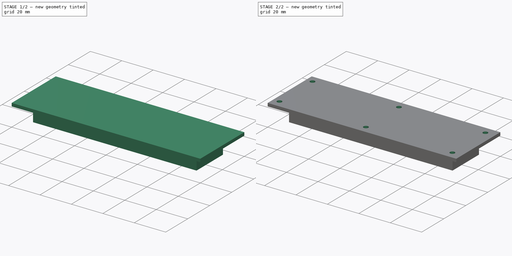
[diagram: build sequence overview — one tinted view per stage of 2, left to right]
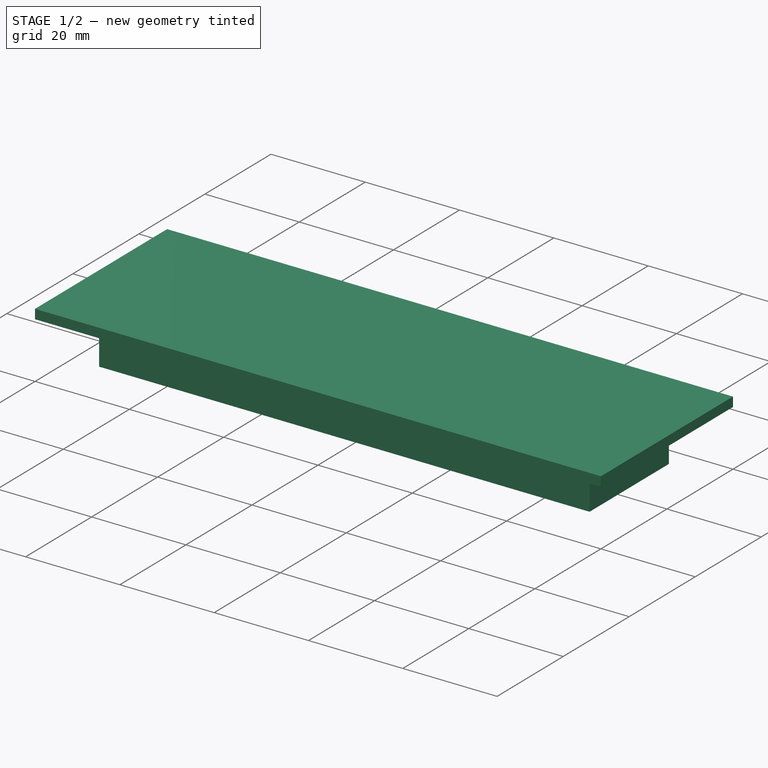
[diagram: stage 1 of 2 — iso view after this stage's code; geometry added in this stage tinted green]
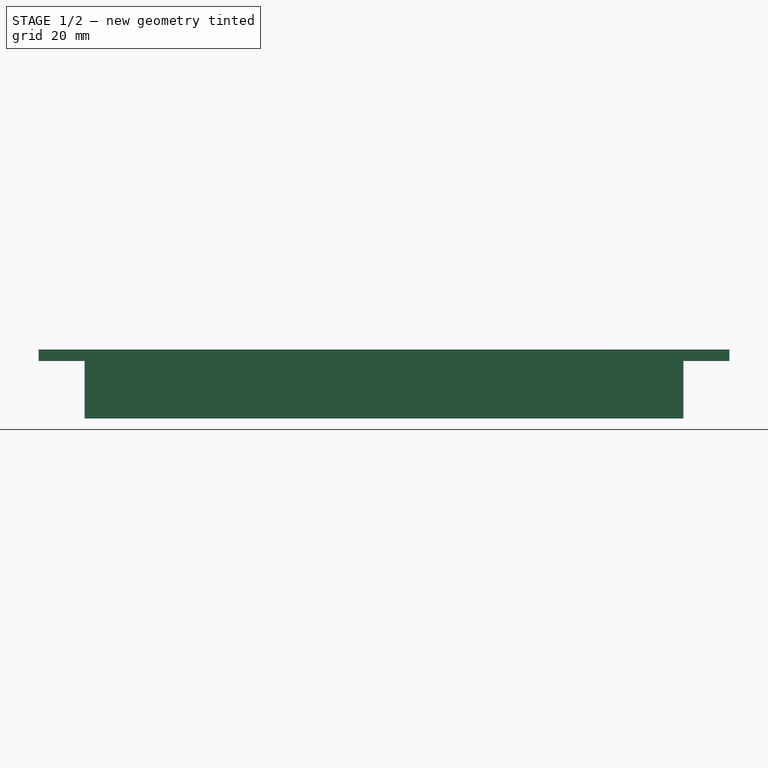
[diagram: stage 1 of 2 — front view after this stage's code; geometry added in this stage tinted green]
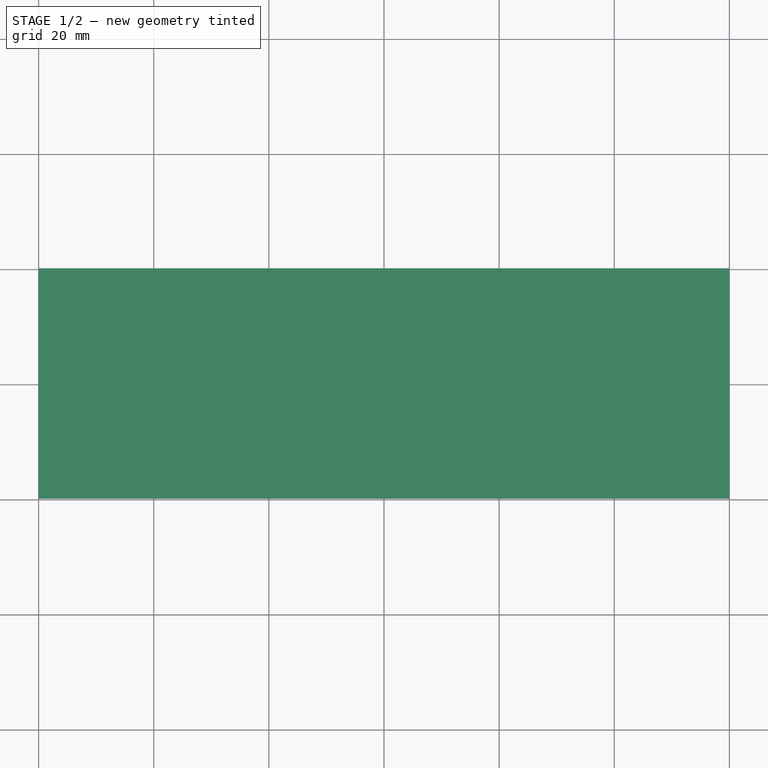
[diagram: stage 1 of 2 — top view after this stage's code; geometry added in this stage tinted green]
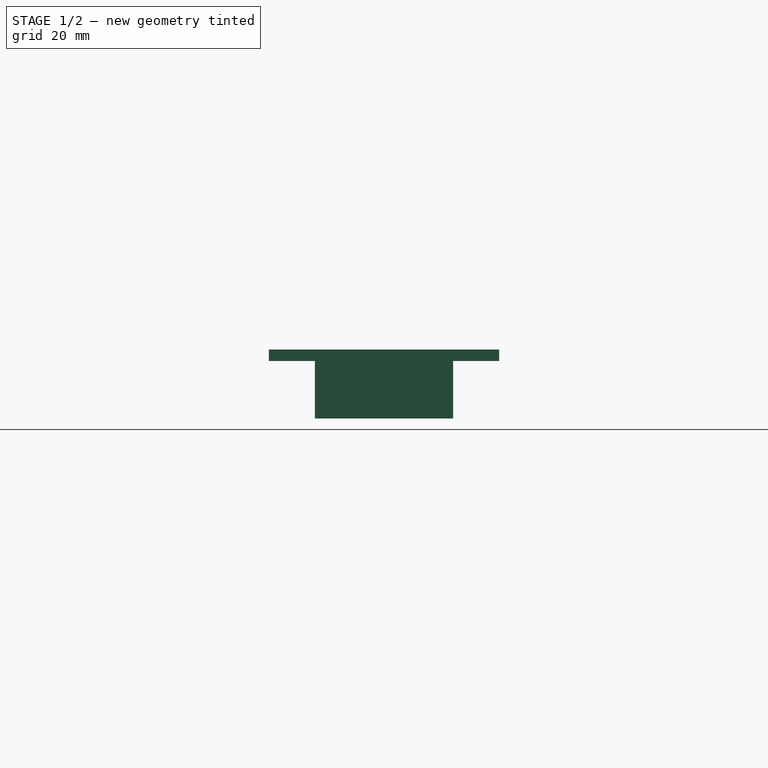
[diagram: stage 1 of 2 — right view after this stage's code; geometry added in this stage tinted green]
FCSTD DOCUMENT  (FreeCAD 0.16R6706 (Git))
Label: iROB-EA_ModuloPrincipal_Lateral
License: All rights reserved
LicenseURL: http://en.wikipedia.org/wiki/All_rights_reserved
objects: Sketcher::SketchObject×4, PartDesign::Pad×2, PartDesign::Pocket×2
note: 12 computed .brp shape members not serialized (recipe doc carries the construction recipe); baked Part::Feature solids carry a one-line shape summary decoded from their .brp

FEATURE [Sketcher::SketchObject] Sketch  label="Base"
  sketch-geometry (4):
    g0: LineSegment StartX=0 StartY=40 StartZ=0 EndX=120 EndY=40 EndZ=0
    g1: LineSegment StartX=120 StartY=40 StartZ=0 EndX=120 EndY=0 EndZ=0
    g2: LineSegment StartX=120 StartY=0 StartZ=0 EndX=0 EndY=0 EndZ=0
    g3: LineSegment StartX=0 StartY=0 StartZ=0 EndX=0 EndY=40 EndZ=0
  constraints (11):
    c: Coincident(g0,g1)
    c: Coincident(g1,g2)
    c: Coincident(g2,g3)
    c: Coincident(g3,g0)
    c: Horizontal(g0)
    c: Horizontal(g2)
    c: Vertical(g1)
    c: Vertical(g3)
    c: DistanceX(g0,g0) = 120
    c: DistanceY(g3,g3) = 40
    c: Coincident(g2,g-1)
FEATURE [PartDesign::Pad] Pad
  Length = 2
  Length2 = 100
  Sketch = -> Sketch
  Type = 0
FEATURE [Sketcher::SketchObject] Sketch009  label="Recuadro_Ventana"
  Placement = pos=(0,0,0) rot=(1,0,0;3.14159rad)
  Support = -> Pad [Face5]
  sketch-geometry (8):
    g0: LineSegment StartX=10 StartY=-10 StartZ=0 EndX=110 EndY=-10 EndZ=0
    g1: LineSegment StartX=110 StartY=-10 StartZ=0 EndX=110 EndY=-30 EndZ=0
    g2: LineSegment StartX=110 StartY=-30 StartZ=0 EndX=10 EndY=-30 EndZ=0
    g3: LineSegment StartX=10 StartY=-30 StartZ=0 EndX=10 EndY=-10 EndZ=0
    g4: LineSegment StartX=8 StartY=-8 StartZ=0 EndX=112 EndY=-8 EndZ=0
    g5: LineSegment StartX=112 StartY=-8 StartZ=0 EndX=112 EndY=-32 EndZ=0
    g6: LineSegment StartX=112 StartY=-32 StartZ=0 EndX=8 EndY=-32 EndZ=0
    g7: LineSegment StartX=8 StartY=-32 StartZ=0 EndX=8 EndY=-8 EndZ=0
  constraints (24):
    c: Coincident(g0,g1)
    c: Coincident(g1,g2)
    c: Coincident(g2,g3)
    c: Coincident(g3,g0)
    c: Horizontal(g0)
    c: Horizontal(g2)
    c: Vertical(g1)
    c: Vertical(g3)
    c: DistanceX(g0,g0) = 100
    c: DistanceY(g3,g3) = 20
    c: Coincident(g4,g5)
    c: Coincident(g5,g6)
    c: Coincident(g6,g7)
    c: Coincident(g7,g4)
    c: Horizontal(g4)
    c: Horizontal(g6)
    c: Vertical(g5)
    c: Vertical(g7)
    c: DistanceX(g4,g4) = 104
    c: DistanceY(g7,g7) = 24
    c: DistanceY(g6,g2) = 2
    c: DistanceX(g2,g6) = -2
    c: DistanceY(g0,g-1) = 10
    c: DistanceX(g-1,g0) = 10
FEATURE [PartDesign::Pad] Pad001
  Length = 10
  Length2 = 100
  Sketch = -> Sketch009
  Type = 0
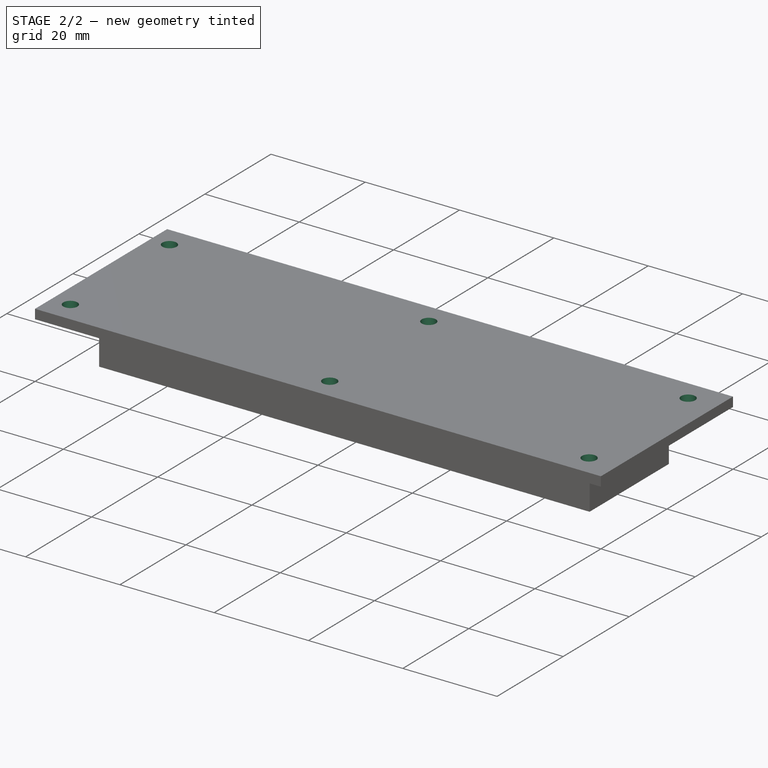
[diagram: stage 2 of 2 — iso view after this stage's code; geometry added in this stage tinted green]
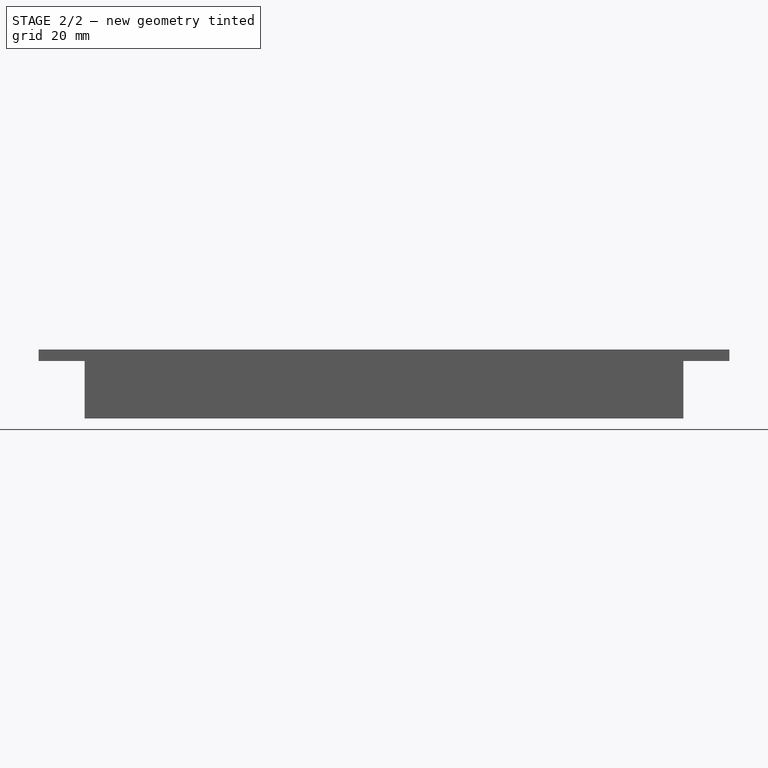
[diagram: stage 2 of 2 — front view after this stage's code; geometry added in this stage tinted green]
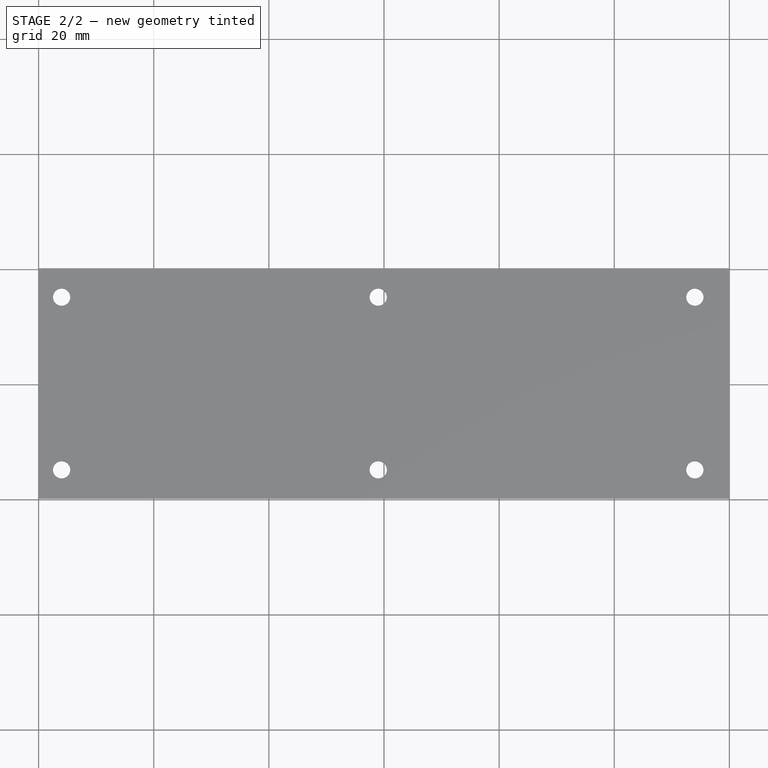
[diagram: stage 2 of 2 — top view after this stage's code; geometry added in this stage tinted green]
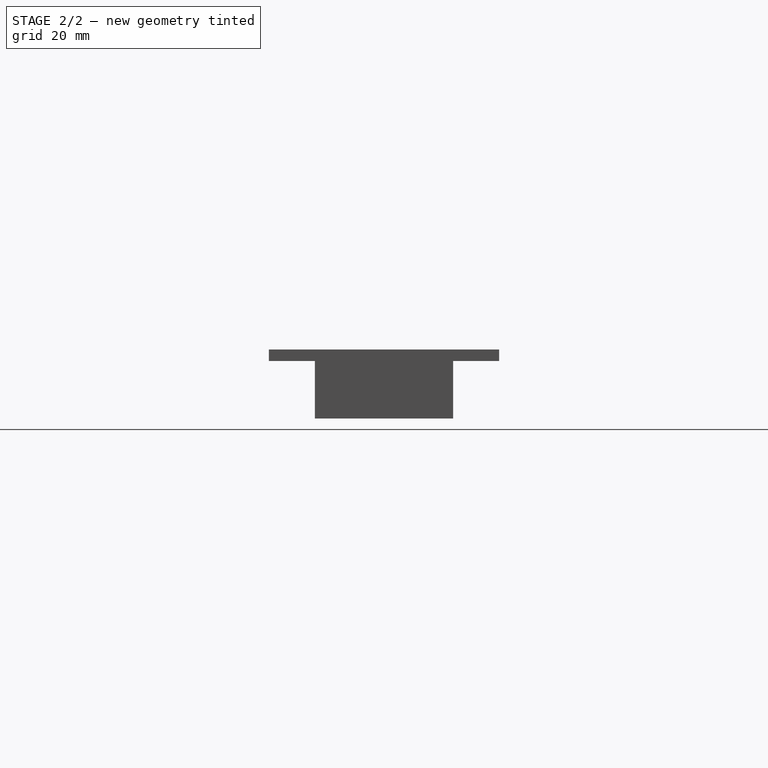
[diagram: stage 2 of 2 — right view after this stage's code; geometry added in this stage tinted green]
FEATURE [Sketcher::SketchObject] Sketch010  label="Ventana_Se_Ha_quitado"
  Placement = pos=(0,0,2) rot=(0,0,1;0rad)
  Support = -> Pad001 [Face5]
  sketch-geometry (2):
    g0: LineSegment StartX=110 StartY=10 StartZ=0 EndX=110 EndY=10 EndZ=0
    g1: LineSegment StartX=10 StartY=10 StartZ=0 EndX=10 EndY=10 EndZ=0
  constraints (2):
    c: Vertical(g0)
    c: Vertical(g1)
FEATURE [PartDesign::Pocket] Pocket
  Length = 4
  Sketch = -> Sketch010
  Type = 0
FEATURE [Sketcher::SketchObject] Sketch011  label="Taladros"
  Placement = pos=(0,0,0) rot=(1,0,0;3.14159rad)
  Support = -> Pocket [Face4]
  sketch-geometry (6):
    g0: Circle CenterX=4 CenterY=-5 CenterZ=0 NormalX=0 NormalY=0 NormalZ=1 Radius=1.5
    g1: Circle CenterX=59 CenterY=-5 CenterZ=0 NormalX=0 NormalY=0 NormalZ=1 Radius=1.5
    g2: Circle CenterX=114 CenterY=-5 CenterZ=0 NormalX=0 NormalY=0 NormalZ=1 Radius=1.5
    g3: Circle CenterX=4 CenterY=-35 CenterZ=0 NormalX=0 NormalY=0 NormalZ=1 Radius=1.5
    g4: Circle CenterX=59 CenterY=-35 CenterZ=0 NormalX=0 NormalY=0 NormalZ=1 Radius=1.5
    g5: Circle CenterX=114 CenterY=-35 CenterZ=0 NormalX=0 NormalY=0 NormalZ=1 Radius=1.5
  constraints (18):
    c: Radius(g0) = 1.5
    c: Radius(g1) = 1.5
    c: DistanceX(g0,g1) = 55
    c: DistanceY(g1,g0) = 0
    c: Radius(g2) = 1.5
    c: DistanceY(g2,g1) = 0
    c: DistanceX(g2,g1) = -55
    c: DistanceX(g-1,g0) = 4
    c: DistanceY(g-1,g0) = -5
    c: Radius(g3) = 1.5
    c: Radius(g4) = 1.5
    c: Radius(g5) = 1.5
    c: DistanceY(g3,g4) = 0
    c: DistanceY(g5,g4) = 0
    c: DistanceX(g3,g4) = 55
    c: DistanceX(g4,g5) = 55
    c: DistanceX(g3,g0) = 0
    c: DistanceY(g3,g0) = 30
FEATURE [PartDesign::Pocket] Pocket001
  Length = 4
  Sketch = -> Sketch011
  Type = 0
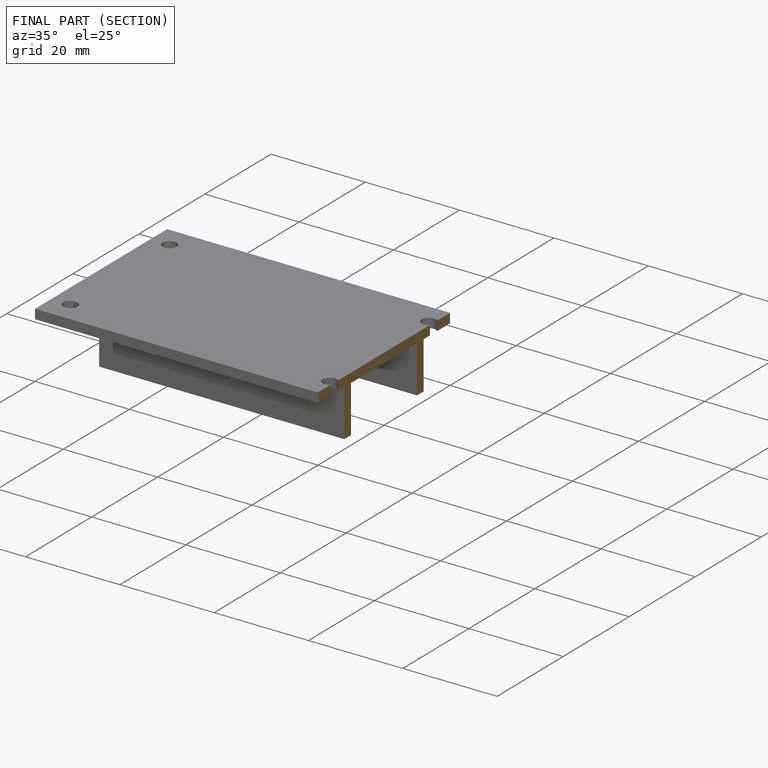
[diagram: finished part — half-section view (interior)]
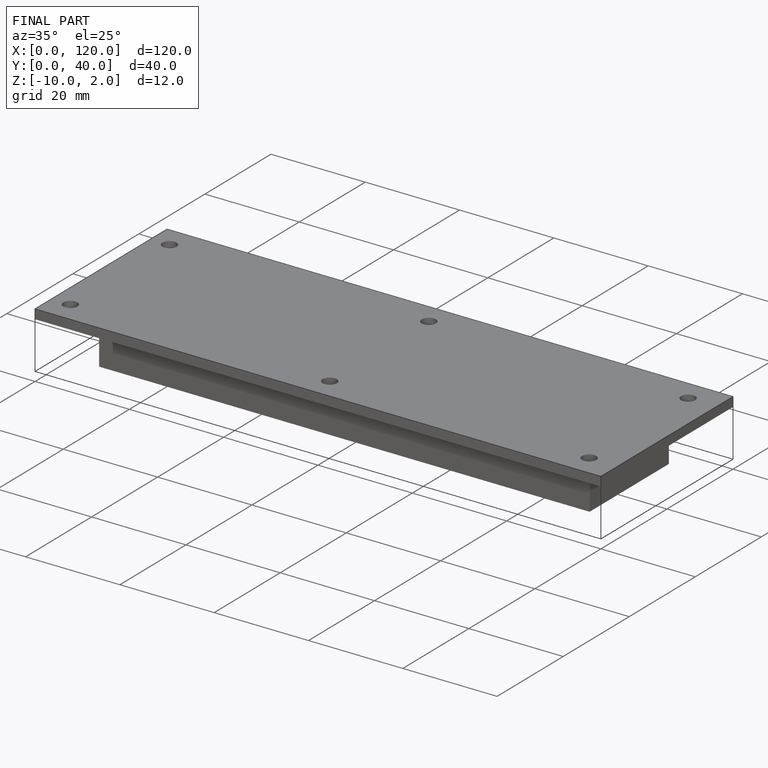
[diagram: finished part — iso view with bounding-box wireframe]
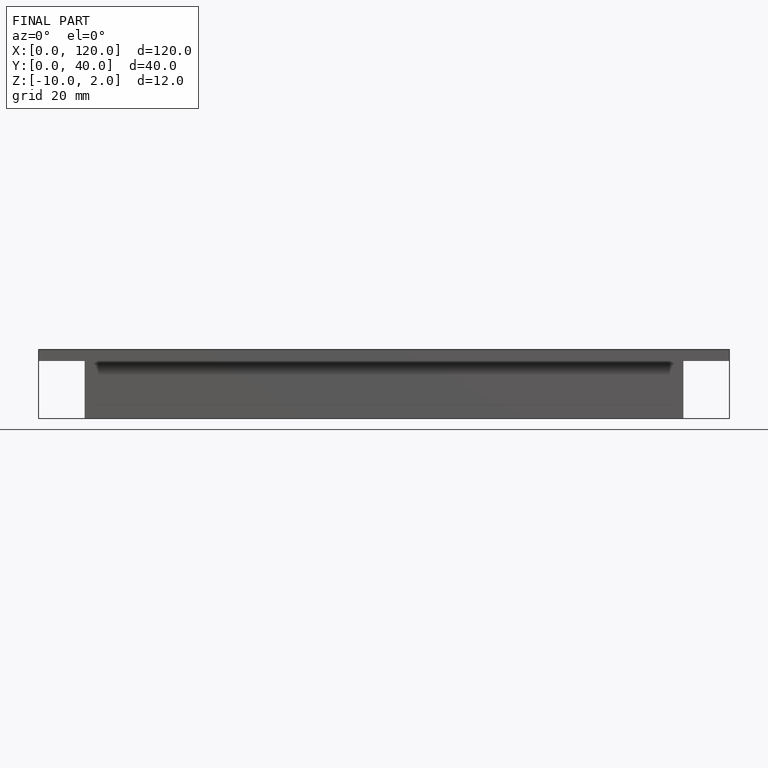
[diagram: finished part — front view with bounding-box wireframe]
